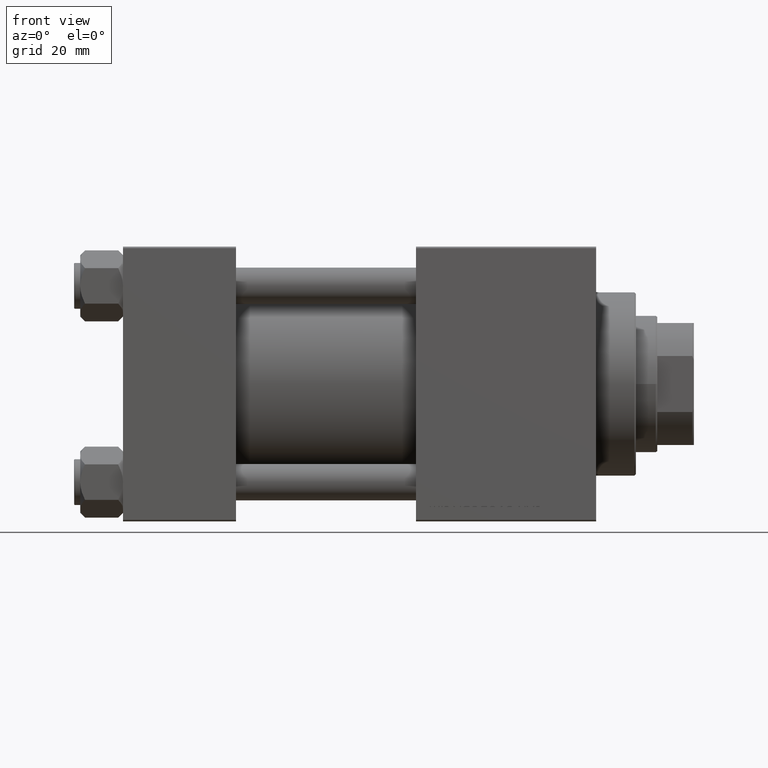
[diagram: clean part render]
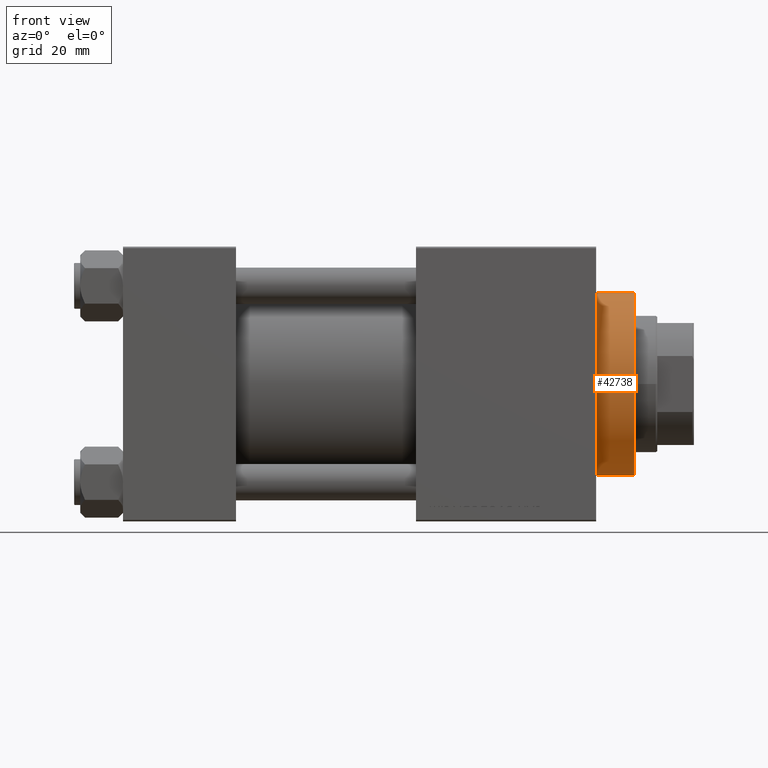
[diagram: same view with one face highlighted and labeled with its STEP entity id]
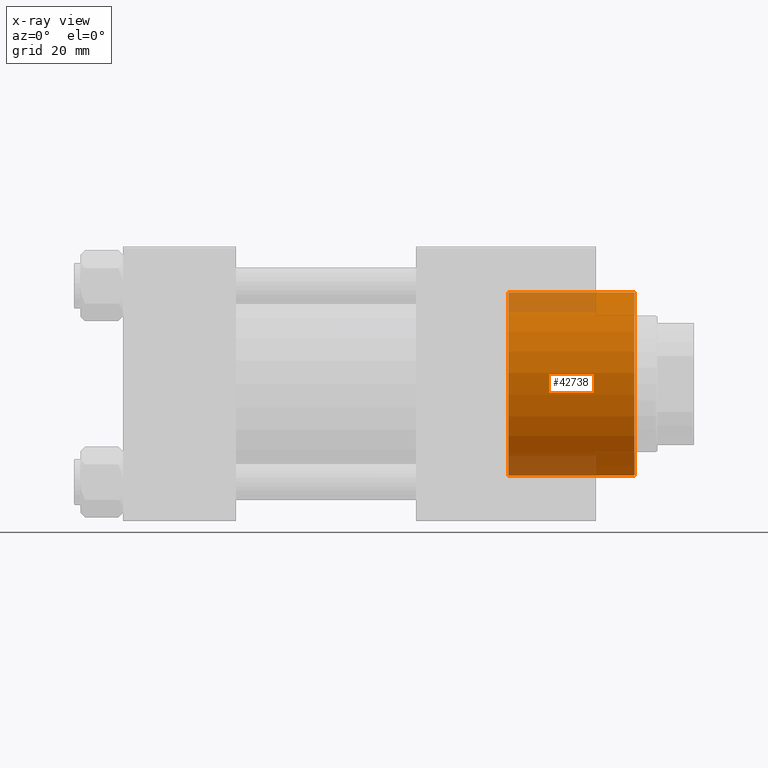
[diagram: x-ray of the same camera — body ghosted, the highlighted face saturated]
A machine part, front view. The second image highlights one B-rep face of the part: STEP entity #42738.
The next image is the same camera in x-ray: the body ghosted, the highlighted face saturated — about 15% of this face is hidden behind the body in this view.
In plain terms, the highlighted cylindrical surface (partial cylindrical patch) has radius 30 mm, axis along (-1, -0, -0).
Its self-contained STEP definition (entity closure, byte-faithful):
#1448 = DIRECTION ( 'NONE',  ( 1.000000000000000000, 0.000000000000000000, 0.000000000000000000 ) ) ;
#2683 = ORIENTED_EDGE ( 'NONE', *, *, #38451, .T. ) ;
#4993 = DIRECTION ( 'NONE',  ( 0.000000000000000000, 0.000000000000000000, -1.000000000000000000 ) ) ;
#7198 = DIRECTION ( 'NONE',  ( -1.000000000000000000, 0.000000000000000000, 0.000000000000000000 ) ) ;
#9411 = CIRCLE ( 'NONE', #37718, 30.00000000000000000 ) ;
#9812 = ORIENTED_EDGE ( 'NONE', *, *, #39471, .F. ) ;
#10070 = AXIS2_PLACEMENT_3D ( 'NONE', #19094, #42172, #7198 ) ;
#11422 = EDGE_CURVE ( 'NONE', #44102, #14075, #19027, .T. ) ;
#12908 = ORIENTED_EDGE ( 'NONE', *, *, #11422, .T. ) ;
#14075 = VERTEX_POINT ( 'NONE', #43042 ) ;
#16633 = CARTESIAN_POINT ( 'NONE',  ( 0.000000000000000000, 0.000000000000000000, 0.000000000000000000 ) ) ;
#16888 = DIRECTION ( 'NONE',  ( 0.000000000000000000, 0.000000000000000000, 1.000000000000000000 ) ) ;
#19027 = LINE ( 'NONE', #19276, #26616 ) ;
#19094 = CARTESIAN_POINT ( 'NONE',  ( 0.000000000000000000, 0.000000000000000000, 28.69999999999999929 ) ) ;
#19276 = CARTESIAN_POINT ( 'NONE',  ( -30.00000000000000000, 0.000000000000000000, 28.69999999999999929 ) ) ;
#19622 = CARTESIAN_POINT ( 'NONE',  ( 30.00000000000000000, 3.673940397442059178E-15, 28.69999999999999929 ) ) ;
#21809 = CARTESIAN_POINT ( 'NONE',  ( 30.00000000000000000, 3.673940397442059178E-15, 41.19999999999998153 ) ) ;
#23568 = VERTEX_POINT ( 'NONE', #21809 ) ;
#23650 = FACE_OUTER_BOUND ( 'NONE', #46681, .T. ) ;
#26616 = VECTOR ( 'NONE', #34750, 1000.000000000000000 ) ;
#32090 = DIRECTION ( 'NONE',  ( 1.000000000000000000, 0.000000000000000000, 0.000000000000000000 ) ) ;
#34750 = DIRECTION ( 'NONE',  ( -0.000000000000000000, -0.000000000000000000, -1.000000000000000000 ) ) ;
#37646 = ORIENTED_EDGE ( 'NONE', *, *, #43566, .T. ) ;
#37718 = AXIS2_PLACEMENT_3D ( 'NONE', #39723, #4993, #1448 ) ;
#38451 = EDGE_CURVE ( 'NONE', #14075, #42823, #48890, .T. ) ;
#38900 = DIRECTION ( 'NONE',  ( -0.000000000000000000, -0.000000000000000000, -1.000000000000000000 ) ) ;
#39122 = CYLINDRICAL_SURFACE ( 'NONE', #10070, 30.00000000000000000 ) ;
#39471 = EDGE_CURVE ( 'NONE', #23568, #42823, #46250, .T. ) ;
#39723 = CARTESIAN_POINT ( 'NONE',  ( 0.000000000000000000, 0.000000000000000000, 41.19999999999998153 ) ) ;
#40125 = CARTESIAN_POINT ( 'NONE',  ( 30.00000000000000000, 3.673940397442059178E-15, 0.000000000000000000 ) ) ;
#42172 = DIRECTION ( 'NONE',  ( -0.000000000000000000, -0.000000000000000000, -1.000000000000000000 ) ) ;
#42738 = ADVANCED_FACE ( 'NONE', ( #23650 ), #39122, .T. ) ;
#42823 = VERTEX_POINT ( 'NONE', #40125 ) ;
#43042 = CARTESIAN_POINT ( 'NONE',  ( -30.00000000000000000, 0.000000000000000000, 0.000000000000000000 ) ) ;
#43566 = EDGE_CURVE ( 'NONE', #23568, #44102, #9411, .T. ) ;
#44102 = VERTEX_POINT ( 'NONE', #47208 ) ;
#46250 = LINE ( 'NONE', #19622, #48933 ) ;
#46681 = EDGE_LOOP ( 'NONE', ( #9812, #37646, #12908, #2683 ) ) ;
#47208 = CARTESIAN_POINT ( 'NONE',  ( -30.00000000000000000, 0.000000000000000000, 41.19999999999998153 ) ) ;
#48890 = CIRCLE ( 'NONE', #49711, 30.00000000000000000 ) ;
#48933 = VECTOR ( 'NONE', #38900, 1000.000000000000000 ) ;
#49711 = AXIS2_PLACEMENT_3D ( 'NONE', #16633, #16888, #32090 ) ;